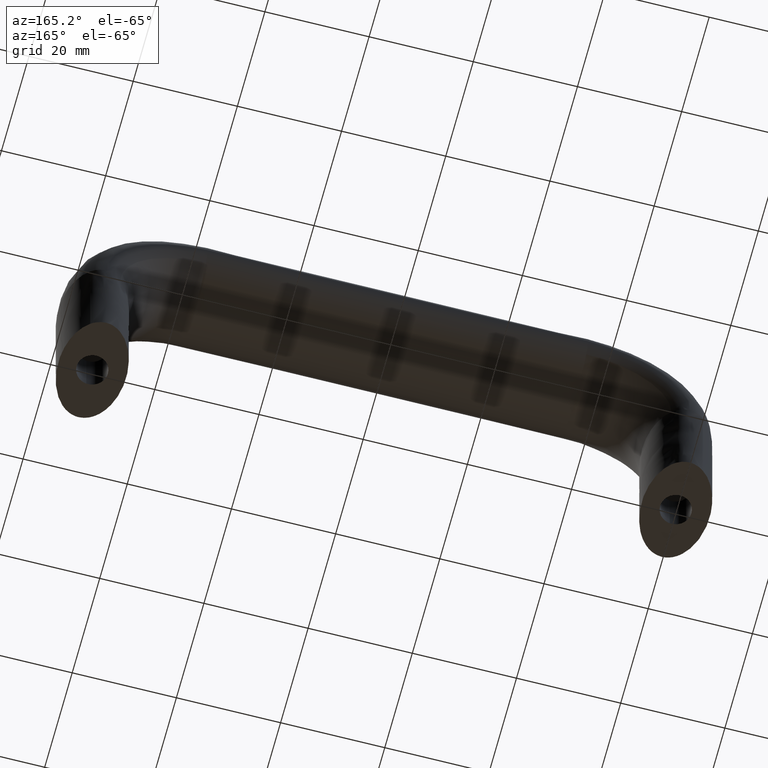
[diagram: clean part render]
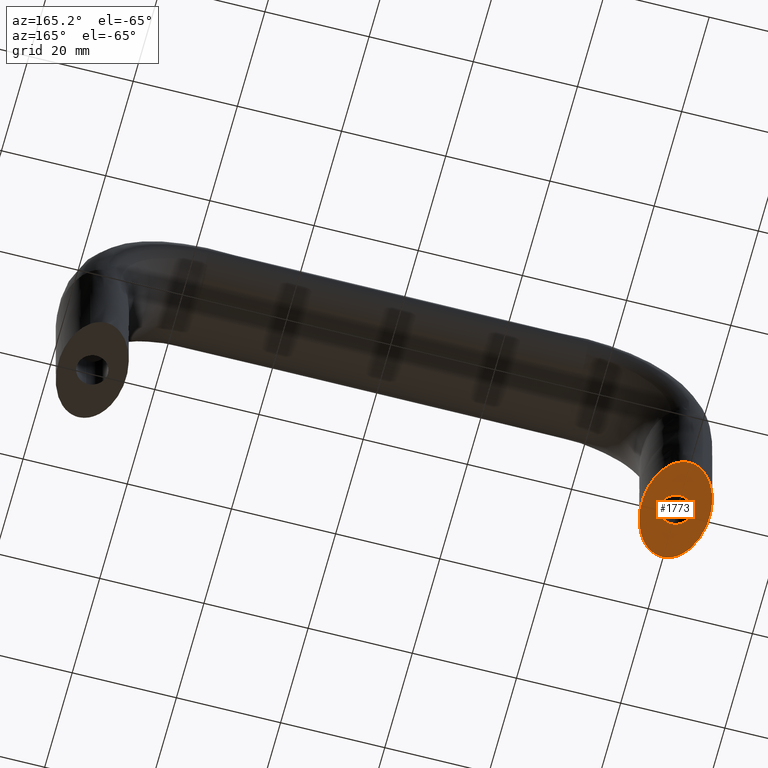
[diagram: same view with one face highlighted and labeled with its STEP entity id]
A machine part, auxiliary view. The second image highlights one B-rep face of the part: STEP entity #1773.
In plain terms, the highlighted face is a freeform B-spline surface patch.
Its self-contained STEP definition (entity closure, byte-faithful):
#85=CARTESIAN_POINT('',(0.354102704000137,-2.979028579087450,2.839428E-017));
#86=VERTEX_POINT('',#85);
#92=CARTESIAN_POINT('',(-3.0,0.0,0.0));
#93=VERTEX_POINT('',#92);
#94=CARTESIAN_POINT('',(0.354102704000137,-2.979028579087450,2.839428E-017));
#95=CARTESIAN_POINT('',(0.177672358985908,-3.000000000000000,0.0));
#96=CARTESIAN_POINT('',(0.0,-3.0,0.0));
#97=CARTESIAN_POINT('',(-3.0,-3.0,0.0));
#98=CARTESIAN_POINT('',(-3.0,0.0,0.0));
#106=(BOUNDED_CURVE()B_SPLINE_CURVE(2,(#94,#95,#96,#97,#98),.UNSPECIFIED.,.F.,.U.)B_SPLINE_CURVE_WITH_KNOTS((3,2,3),(0.229562473512256,0.250000000000000,0.500000000000000),.UNSPECIFIED.)CURVE()GEOMETRIC_REPRESENTATION_ITEM()RATIONAL_B_SPLINE_CURVE((0.956026754181245,0.976055948329678,1.0,0.707106781186548,1.0))REPRESENTATION_ITEM(''));
#107=EDGE_CURVE('',#86,#93,#106,.T.);
#109=CARTESIAN_POINT('',(-0.183145619082517,2.994404395236368,2.775558E-017));
#110=VERTEX_POINT('',#109);
#111=CARTESIAN_POINT('',(-3.0,0.0,0.0));
#112=CARTESIAN_POINT('',(-2.999999999999999,2.822118199814505,0.0));
#113=CARTESIAN_POINT('',(-0.183145619082517,2.994404395236369,2.775558E-017));
#121=(BOUNDED_CURVE()B_SPLINE_CURVE(2,(#111,#112,#113),.UNSPECIFIED.,.F.,.U.)B_SPLINE_CURVE_WITH_KNOTS((3,3),(0.500000000000000,0.739332962186887),.UNSPECIFIED.)CURVE()GEOMETRIC_REPRESENTATION_ITEM()RATIONAL_B_SPLINE_CURVE((1.0,0.719603993347698,0.976072041555151))REPRESENTATION_ITEM(''));
#122=EDGE_CURVE('',#93,#110,#121,.T.);
#196=CARTESIAN_POINT('',(3.0,0.0,0.0));
#197=VERTEX_POINT('',#196);
#198=CARTESIAN_POINT('',(-0.183145619082517,2.994404395236368,2.775558E-017));
#199=CARTESIAN_POINT('',(-0.091658290375053,2.999999999999999,0.0));
#200=CARTESIAN_POINT('',(0.0,3.0,0.0));
#201=CARTESIAN_POINT('',(3.0,3.0,0.0));
#202=CARTESIAN_POINT('',(3.0,0.0,0.0));
#210=(BOUNDED_CURVE()B_SPLINE_CURVE(2,(#198,#199,#200,#201,#202),.UNSPECIFIED.,.F.,.U.)B_SPLINE_CURVE_WITH_KNOTS((3,2,3),(0.739332962186887,0.750000000000000,1.0),.UNSPECIFIED.)CURVE()GEOMETRIC_REPRESENTATION_ITEM()RATIONAL_B_SPLINE_CURVE((0.976072041555152,0.987502787838850,1.0,0.707106781186548,1.0))REPRESENTATION_ITEM(''));
#211=EDGE_CURVE('',#110,#197,#210,.T.);
#213=CARTESIAN_POINT('',(3.0,0.0,0.0));
#214=CARTESIAN_POINT('',(3.000000000000001,-2.664523577800307,0.0));
#215=CARTESIAN_POINT('',(0.354102704000137,-2.979028579087450,2.839428E-017));
#223=(BOUNDED_CURVE()B_SPLINE_CURVE(2,(#213,#214,#215),.UNSPECIFIED.,.F.,.U.)B_SPLINE_CURVE_WITH_KNOTS((3,3),(0.0,0.229562473512256),.UNSPECIFIED.)CURVE()GEOMETRIC_REPRESENTATION_ITEM()RATIONAL_B_SPLINE_CURVE((1.0,0.731050832856870,0.956026754181245))REPRESENTATION_ITEM(''));
#224=EDGE_CURVE('',#197,#86,#223,.T.);
#1590=CARTESIAN_POINT('',(-2.767718893498333,9.043070626158954,-4.440892E-016));
#1591=VERTEX_POINT('',#1590);
#1599=CARTESIAN_POINT('',(3.252607E-016,-10.0,0.0));
#1600=VERTEX_POINT('',#1599);
#1601=CARTESIAN_POINT('',(-2.767718893498333,9.043070626158954,-4.440892E-016));
#1602=CARTESIAN_POINT('',(-3.789574658902800,8.304902883912446,-4.306256E-016));
#1603=CARTESIAN_POINT('',(-4.593843456445189,7.067814539892179,-4.050451E-016));
#1604=CARTESIAN_POINT('',(-5.508528250209203,5.660889516472497,-3.759528E-016));
#1605=CARTESIAN_POINT('',(-6.003269068346621,3.824138429711629,-3.356494E-016));
#1606=CARTESIAN_POINT('',(-6.498383111718313,1.986001724805764,-2.953156E-016));
#1607=CARTESIAN_POINT('',(-6.498549654176818,-0.002007286109277,-2.499150E-016));
#1608=CARTESIAN_POINT('',(-6.498716322272501,-1.991516021929499,-2.044802E-016));
#1609=CARTESIAN_POINT('',(-6.004283234472825,-3.828126606434067,-1.608943E-016));
#1610=CARTESIAN_POINT('',(-5.509477153587773,-5.666122703084662,-1.172755E-016));
#1611=CARTESIAN_POINT('',(-4.595717391098320,-7.071727548601308,-8.213981E-017));
#1612=CARTESIAN_POINT('',(-3.681268301609664,-8.478392761853591,-4.697762E-017));
#1613=CARTESIAN_POINT('',(-2.487293505025912,-9.239001272481852,-2.564125E-017));
#1614=CARTESIAN_POINT('',(-1.292964223232616,-9.999835604013509,-4.298551E-018));
#1615=CARTESIAN_POINT('',(3.252607E-016,-10.0,0.0));
#1616=B_SPLINE_CURVE_WITH_KNOTS('',2,(#1601,#1602,#1603,#1604,#1605,#1606,#1607,#1608,#1609,#1610,#1611,#1612,#1613,#1614,#1615),.UNSPECIFIED.,.F.,.U.,(3,2,2,2,2,2,2,3),(0.140006435598913,0.250000000000000,0.375000000000000,0.500000000000000,0.625000000000000,0.750000000000000,0.875000000000000,1.0),.UNSPECIFIED.);
#1617=EDGE_CURVE('',#1591,#1600,#1616,.T.);
#1682=CARTESIAN_POINT('',(-1.301043E-015,10.0,0.0));
#1683=VERTEX_POINT('',#1682);
#1684=CARTESIAN_POINT('',(5.827587E-016,-9.999999999999991,0.0));
#1685=CARTESIAN_POINT('',(1.293495947650843,-9.999801000622920,0.0));
#1686=CARTESIAN_POINT('',(2.487442310373089,-9.238795325112871,0.0));
#1687=CARTESIAN_POINT('',(3.682367494606962,-8.477165761672067,0.0));
#1688=CARTESIAN_POINT('',(4.596194077712559,-7.071067811865456,0.0));
#1689=CARTESIAN_POINT('',(5.510710038218062,-5.663909122344585,0.0));
#1690=CARTESIAN_POINT('',(6.005216961323355,-3.826834323650897,0.0));
#1691=CARTESIAN_POINT('',(6.500096933217217,-1.988373662603977,0.0));
#1692=CARTESIAN_POINT('',(6.500000000000003,-3.672735E-015,0.0));
#1693=CARTESIAN_POINT('',(6.499902993657782,1.989873662604707,0.0));
#1694=CARTESIAN_POINT('',(6.005216961323353,3.826834323650896,0.0));
#1695=CARTESIAN_POINT('',(5.510157745084252,5.665180760941928,0.0));
#1696=CARTESIAN_POINT('',(4.596194077712557,7.071067811865471,0.0));
#1697=CARTESIAN_POINT('',(3.681540929521299,8.478015443412405,0.0));
#1698=CARTESIAN_POINT('',(2.487442310373079,9.238795325112868,0.0));
#1699=CARTESIAN_POINT('',(1.292989169263922,9.999801078589059,0.0));
#1700=CARTESIAN_POINT('',(-1.409463E-015,9.999999999999996,0.0));
#1701=B_SPLINE_CURVE_WITH_KNOTS('',2,(#1684,#1685,#1686,#1687,#1688,#1689,#1690,#1691,#1692,#1693,#1694,#1695,#1696,#1697,#1698,#1699,#1700),.UNSPECIFIED.,.F.,.U.,(3,2,2,2,2,2,2,2,3),(0.0,0.125000000000000,0.250000000000000,0.375000000000000,0.500000000000000,0.625000000000000,0.750000000000000,0.875000000000000,1.0),.UNSPECIFIED.);
#1702=EDGE_CURVE('',#1600,#1683,#1701,.T.);
#1704=CARTESIAN_POINT('',(-1.301043E-015,10.0,0.0));
#1705=CARTESIAN_POINT('',(-1.292419972266707,9.998311845128663,-1.854057E-016));
#1706=CARTESIAN_POINT('',(-2.485155382816887,9.235630205564771,-3.940698E-016));
#1707=CARTESIAN_POINT('',(-2.628462429610895,9.143994078689408,-4.191408E-016));
#1708=CARTESIAN_POINT('',(-2.767718893498333,9.043070626158954,-4.440892E-016));
#1709=B_SPLINE_CURVE_WITH_KNOTS('',2,(#1704,#1705,#1706,#1707,#1708),.UNSPECIFIED.,.F.,.U.,(3,2,3),(0.0,0.125000000000000,0.140006435598913),.UNSPECIFIED.);
#1710=EDGE_CURVE('',#1683,#1591,#1709,.T.);
#1757=CARTESIAN_POINT('',(7.106842004089795,11.026340132531960,0.0));
#1758=CARTESIAN_POINT('',(7.191467524061284,-10.971334770219350,0.0));
#1759=CARTESIAN_POINT('',(-7.189678979863040,10.971341114344860,0.0));
#1760=CARTESIAN_POINT('',(-7.105053459891552,-11.026333788406451,0.0));
#1761=B_SPLINE_SURFACE_WITH_KNOTS('',1,1,((#1757,#1759),(#1758,#1760)),.UNSPECIFIED.,.F.,.F.,.U.,(2,2),(2,2),(0.0,21.997837680230418),(0.0,14.296626774753729),.UNSPECIFIED.);
#1762=ORIENTED_EDGE('',*,*,#1617,.F.);
#1763=ORIENTED_EDGE('',*,*,#1710,.F.);
#1764=ORIENTED_EDGE('',*,*,#1702,.F.);
#1765=EDGE_LOOP('',(#1762,#1763,#1764));
#1766=FACE_OUTER_BOUND('',#1765,.T.);
#1767=ORIENTED_EDGE('',*,*,#122,.F.);
#1768=ORIENTED_EDGE('',*,*,#107,.F.);
#1769=ORIENTED_EDGE('',*,*,#224,.F.);
#1770=ORIENTED_EDGE('',*,*,#211,.F.);
#1771=EDGE_LOOP('',(#1767,#1768,#1769,#1770));
#1772=FACE_BOUND('',#1771,.T.);
#1773=ADVANCED_FACE('',(#1766,#1772),#1761,.T.);